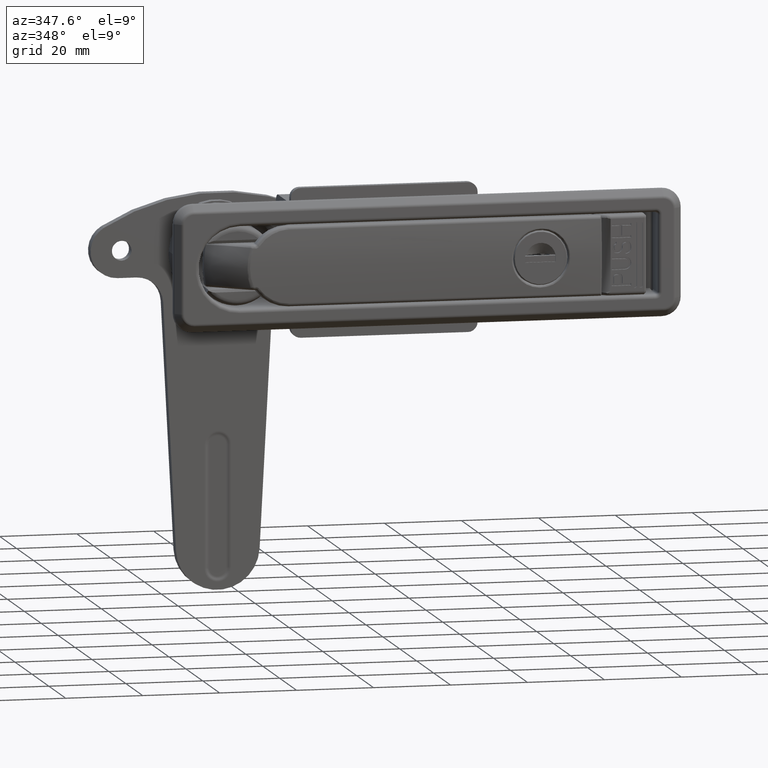
[diagram: clean part render]
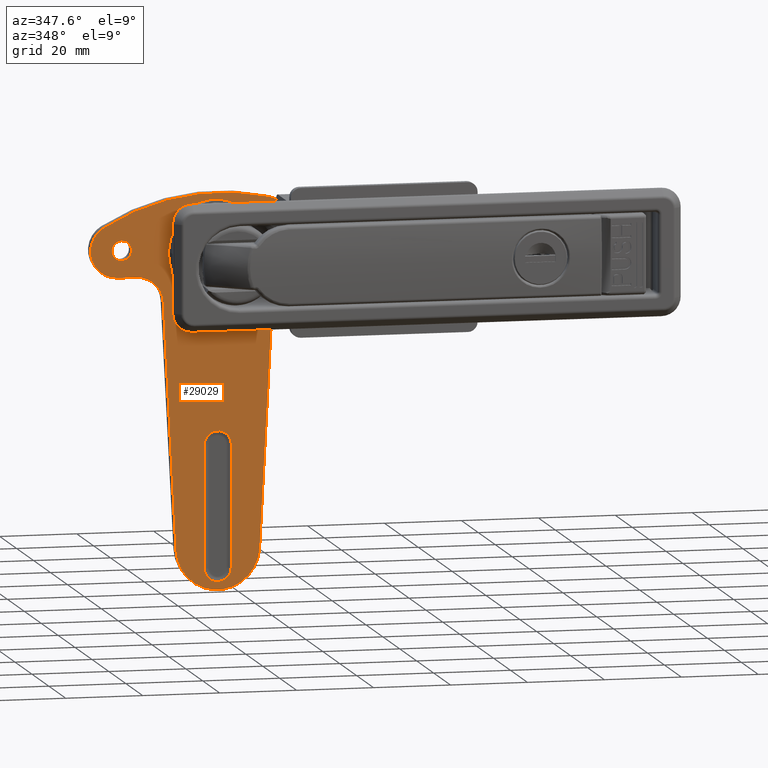
[diagram: same view with one face highlighted and labeled with its STEP entity id]
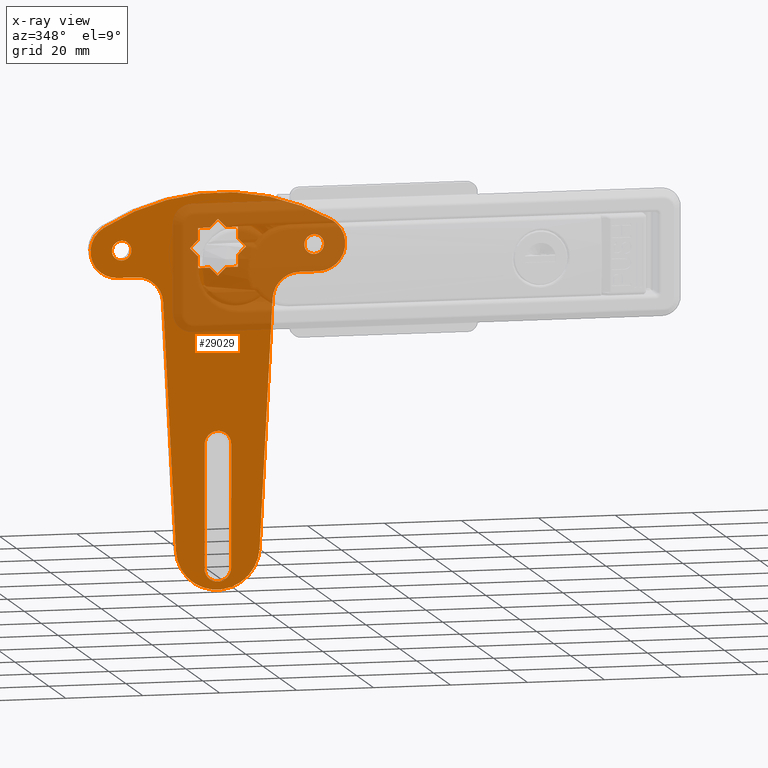
[diagram: x-ray of the same camera — body ghosted, the highlighted face saturated]
A machine part, auxiliary view. The second image highlights one B-rep face of the part: STEP entity #29029.
The next image is the same camera in x-ray: the body ghosted, the highlighted face saturated — about 36% of this face is hidden behind the body in this view.
In plain terms, the highlighted planar face has unit normal (0, -1, -0).
Its self-contained STEP definition (entity closure, byte-faithful):
#606=FACE_BOUND('',#6515,.T.);
#607=FACE_BOUND('',#6516,.T.);
#608=FACE_BOUND('',#6517,.T.);
#609=FACE_BOUND('',#6518,.T.);
#2343=CIRCLE('',#31959,3.47177978870815);
#2344=CIRCLE('',#31962,3.47177978870815);
#2346=CIRCLE('',#31966,10.88);
#2347=CIRCLE('',#31967,7.);
#2348=CIRCLE('',#31968,7.);
#2349=CIRCLE('',#31969,57.9781727801223);
#2350=CIRCLE('',#31970,7.);
#2351=CIRCLE('',#31971,7.00000000000001);
#2352=CIRCLE('',#31972,2.55);
#2353=CIRCLE('',#31973,2.55);
#4631=FACE_OUTER_BOUND('',#6514,.T.);
#6514=EDGE_LOOP('',(#26246,#26247,#26248,#26249,#26250,#26251,#26252,#26253,
#26254,#26255));
#6515=EDGE_LOOP('',(#26256));
#6516=EDGE_LOOP('',(#26257));
#6517=EDGE_LOOP('',(#26258,#26259,#26260,#26261,#26262,#26263,#26264,#26265,
#26266,#26267,#26268,#26269,#26270,#26271,#26272,#26273));
#6518=EDGE_LOOP('',(#26274,#26275,#26276,#26277));
#9284=LINE('',#101796,#11329);
#9285=LINE('',#101808,#11330);
#9286=LINE('',#101814,#11331);
#9287=LINE('',#101818,#11332);
#9288=LINE('',#101826,#11333);
#9289=LINE('',#101829,#11334);
#9290=LINE('',#101836,#11335);
#9291=LINE('',#101838,#11336);
#9292=LINE('',#101840,#11337);
#9293=LINE('',#101842,#11338);
#9294=LINE('',#101844,#11339);
#9295=LINE('',#101846,#11340);
#9296=LINE('',#101848,#11341);
#9297=LINE('',#101850,#11342);
#9298=LINE('',#101852,#11343);
#9299=LINE('',#101854,#11344);
#9300=LINE('',#101856,#11345);
#9301=LINE('',#101858,#11346);
#9302=LINE('',#101860,#11347);
#9303=LINE('',#101862,#11348);
#9304=LINE('',#101864,#11349);
#9305=LINE('',#101865,#11350);
#11329=VECTOR('',#39673,31.8);
#11330=VECTOR('',#39692,31.8);
#11331=VECTOR('',#39697,64.1395353896487);
#11332=VECTOR('',#39700,4.9);
#11333=VECTOR('',#39707,4.9);
#11334=VECTOR('',#39710,64.1395353896487);
#11335=VECTOR('',#39715,3.01680015377856);
#11336=VECTOR('',#39716,3.01680015377856);
#11337=VECTOR('',#39717,3.01680015377857);
#11338=VECTOR('',#39718,3.01680015377857);
#11339=VECTOR('',#39719,3.01680015377856);
#11340=VECTOR('',#39720,3.01680015377856);
#11341=VECTOR('',#39721,3.01680015377856);
#11342=VECTOR('',#39722,3.01680015377856);
#11343=VECTOR('',#39723,3.01680015377856);
#11344=VECTOR('',#39724,3.01680015377856);
#11345=VECTOR('',#39725,3.01680015377856);
#11346=VECTOR('',#39726,3.01680015377856);
#11347=VECTOR('',#39727,3.01680015377856);
#11348=VECTOR('',#39728,3.01680015377856);
#11349=VECTOR('',#39729,3.01680015377856);
#11350=VECTOR('',#39730,3.01680015377856);
#13922=VERTEX_POINT('',#101793);
#13923=VERTEX_POINT('',#101795);
#13924=VERTEX_POINT('',#101799);
#13925=VERTEX_POINT('',#101804);
#13926=VERTEX_POINT('',#101810);
#13927=VERTEX_POINT('',#101811);
#13928=VERTEX_POINT('',#101813);
#13929=VERTEX_POINT('',#101815);
#13930=VERTEX_POINT('',#101817);
#13931=VERTEX_POINT('',#101819);
#13932=VERTEX_POINT('',#101821);
#13933=VERTEX_POINT('',#101823);
#13934=VERTEX_POINT('',#101825);
#13935=VERTEX_POINT('',#101827);
#13936=VERTEX_POINT('',#101830);
#13937=VERTEX_POINT('',#101832);
#13938=VERTEX_POINT('',#101834);
#13939=VERTEX_POINT('',#101835);
#13940=VERTEX_POINT('',#101837);
#13941=VERTEX_POINT('',#101839);
#13942=VERTEX_POINT('',#101841);
#13943=VERTEX_POINT('',#101843);
#13944=VERTEX_POINT('',#101845);
#13945=VERTEX_POINT('',#101847);
#13946=VERTEX_POINT('',#101849);
#13947=VERTEX_POINT('',#101851);
#13948=VERTEX_POINT('',#101853);
#13949=VERTEX_POINT('',#101855);
#13950=VERTEX_POINT('',#101857);
#13951=VERTEX_POINT('',#101859);
#13952=VERTEX_POINT('',#101861);
#13953=VERTEX_POINT('',#101863);
#18057=EDGE_CURVE('',#13922,#13923,#9284,.T.);
#18060=EDGE_CURVE('',#13924,#13922,#2343,.T.);
#18061=EDGE_CURVE('',#13923,#13925,#2344,.T.);
#18063=EDGE_CURVE('',#13925,#13924,#9285,.T.);
#18064=EDGE_CURVE('',#13926,#13927,#2346,.T.);
#18065=EDGE_CURVE('',#13927,#13928,#9286,.T.);
#18066=EDGE_CURVE('',#13928,#13929,#2347,.T.);
#18067=EDGE_CURVE('',#13929,#13930,#9287,.T.);
#18068=EDGE_CURVE('',#13930,#13931,#2348,.T.);
#18069=EDGE_CURVE('',#13931,#13932,#2349,.T.);
#18070=EDGE_CURVE('',#13932,#13933,#2350,.T.);
#18071=EDGE_CURVE('',#13933,#13934,#9288,.T.);
#18072=EDGE_CURVE('',#13934,#13935,#2351,.T.);
#18073=EDGE_CURVE('',#13935,#13926,#9289,.T.);
#18074=EDGE_CURVE('',#13936,#13936,#2352,.T.);
#18075=EDGE_CURVE('',#13937,#13937,#2353,.T.);
#18076=EDGE_CURVE('',#13938,#13939,#9290,.T.);
#18077=EDGE_CURVE('',#13939,#13940,#9291,.T.);
#18078=EDGE_CURVE('',#13940,#13941,#9292,.T.);
#18079=EDGE_CURVE('',#13941,#13942,#9293,.T.);
#18080=EDGE_CURVE('',#13942,#13943,#9294,.T.);
#18081=EDGE_CURVE('',#13943,#13944,#9295,.T.);
#18082=EDGE_CURVE('',#13944,#13945,#9296,.T.);
#18083=EDGE_CURVE('',#13945,#13946,#9297,.T.);
#18084=EDGE_CURVE('',#13946,#13947,#9298,.T.);
#18085=EDGE_CURVE('',#13947,#13948,#9299,.T.);
#18086=EDGE_CURVE('',#13948,#13949,#9300,.T.);
#18087=EDGE_CURVE('',#13949,#13950,#9301,.T.);
#18088=EDGE_CURVE('',#13950,#13951,#9302,.T.);
#18089=EDGE_CURVE('',#13951,#13952,#9303,.T.);
#18090=EDGE_CURVE('',#13952,#13953,#9304,.T.);
#18091=EDGE_CURVE('',#13953,#13938,#9305,.T.);
#26246=ORIENTED_EDGE('',*,*,#18064,.T.);
#26247=ORIENTED_EDGE('',*,*,#18065,.T.);
#26248=ORIENTED_EDGE('',*,*,#18066,.T.);
#26249=ORIENTED_EDGE('',*,*,#18067,.T.);
#26250=ORIENTED_EDGE('',*,*,#18068,.T.);
#26251=ORIENTED_EDGE('',*,*,#18069,.T.);
#26252=ORIENTED_EDGE('',*,*,#18070,.T.);
#26253=ORIENTED_EDGE('',*,*,#18071,.T.);
#26254=ORIENTED_EDGE('',*,*,#18072,.T.);
#26255=ORIENTED_EDGE('',*,*,#18073,.T.);
#26256=ORIENTED_EDGE('',*,*,#18074,.T.);
#26257=ORIENTED_EDGE('',*,*,#18075,.T.);
#26258=ORIENTED_EDGE('',*,*,#18076,.T.);
#26259=ORIENTED_EDGE('',*,*,#18077,.T.);
#26260=ORIENTED_EDGE('',*,*,#18078,.T.);
#26261=ORIENTED_EDGE('',*,*,#18079,.T.);
#26262=ORIENTED_EDGE('',*,*,#18080,.T.);
#26263=ORIENTED_EDGE('',*,*,#18081,.T.);
#26264=ORIENTED_EDGE('',*,*,#18082,.T.);
#26265=ORIENTED_EDGE('',*,*,#18083,.T.);
#26266=ORIENTED_EDGE('',*,*,#18084,.T.);
#26267=ORIENTED_EDGE('',*,*,#18085,.T.);
#26268=ORIENTED_EDGE('',*,*,#18086,.T.);
#26269=ORIENTED_EDGE('',*,*,#18087,.T.);
#26270=ORIENTED_EDGE('',*,*,#18088,.T.);
#26271=ORIENTED_EDGE('',*,*,#18089,.T.);
#26272=ORIENTED_EDGE('',*,*,#18090,.T.);
#26273=ORIENTED_EDGE('',*,*,#18091,.T.);
#26274=ORIENTED_EDGE('',*,*,#18061,.F.);
#26275=ORIENTED_EDGE('',*,*,#18057,.F.);
#26276=ORIENTED_EDGE('',*,*,#18060,.F.);
#26277=ORIENTED_EDGE('',*,*,#18063,.F.);
#27332=PLANE('',#31965);
#29029=ADVANCED_FACE('',(#4631,#606,#607,#608,#609),#27332,.T.);
#31959=AXIS2_PLACEMENT_3D('',#101801,#39680,#39681);
#31962=AXIS2_PLACEMENT_3D('',#101805,#39686,#39687);
#31965=AXIS2_PLACEMENT_3D('',#101809,#39693,#39694);
#31966=AXIS2_PLACEMENT_3D('',#101812,#39695,#39696);
#31967=AXIS2_PLACEMENT_3D('',#101816,#39698,#39699);
#31968=AXIS2_PLACEMENT_3D('',#101820,#39701,#39702);
#31969=AXIS2_PLACEMENT_3D('',#101822,#39703,#39704);
#31970=AXIS2_PLACEMENT_3D('',#101824,#39705,#39706);
#31971=AXIS2_PLACEMENT_3D('',#101828,#39708,#39709);
#31972=AXIS2_PLACEMENT_3D('',#101831,#39711,#39712);
#31973=AXIS2_PLACEMENT_3D('',#101833,#39713,#39714);
#39673=DIRECTION('',(-1.,0.,0.));
#39680=DIRECTION('center_axis',(0.,0.,1.));
#39681=DIRECTION('ref_axis',(-2.5582798269317E-15,1.,0.));
#39686=DIRECTION('center_axis',(0.,0.,1.));
#39687=DIRECTION('ref_axis',(1.,0.,0.));
#39692=DIRECTION('',(1.,0.,0.));
#39693=DIRECTION('center_axis',(0.,0.,1.));
#39694=DIRECTION('ref_axis',(1.,0.,0.));
#39695=DIRECTION('center_axis',(0.,0.,1.));
#39696=DIRECTION('ref_axis',(1.,0.,0.));
#39697=DIRECTION('',(0.998639714672348,-0.0521413490344388,0.));
#39698=DIRECTION('center_axis',(0.,0.,-1.));
#39699=DIRECTION('ref_axis',(-1.,7.93016446160827E-17,0.));
#39700=DIRECTION('',(-8.50745612739583E-17,-1.,0.));
#39701=DIRECTION('center_axis',(0.,0.,1.));
#39702=DIRECTION('ref_axis',(-1.,7.22069344415986E-17,0.));
#39703=DIRECTION('center_axis',(0.,0.,1.));
#39704=DIRECTION('ref_axis',(0.858995087738313,-0.511983827128796,0.));
#39705=DIRECTION('center_axis',(0.,0.,1.));
#39706=DIRECTION('ref_axis',(1.,0.,0.));
#39707=DIRECTION('',(-8.50745612739583E-17,-1.,0.));
#39708=DIRECTION('center_axis',(0.,0.,-1.));
#39709=DIRECTION('ref_axis',(-0.0521413490344386,0.998639714672348,0.));
#39710=DIRECTION('',(-0.998639714672348,-0.0521413490344387,0.));
#39711=DIRECTION('center_axis',(0.,0.,-1.));
#39712=DIRECTION('ref_axis',(1.,0.,0.));
#39713=DIRECTION('center_axis',(0.,0.,-1.));
#39714=DIRECTION('ref_axis',(1.,0.,0.));
#39715=DIRECTION('',(1.07788643167491E-16,1.,0.));
#39716=DIRECTION('',(1.,4.31154572669964E-16,0.));
#39717=DIRECTION('',(0.707106781186547,0.707106781186548,0.));
#39718=DIRECTION('',(0.707106781186547,-0.707106781186548,0.));
#39719=DIRECTION('',(1.,4.31154572669964E-16,0.));
#39720=DIRECTION('',(1.07788643167491E-16,-1.,0.));
#39721=DIRECTION('',(0.707106781186547,-0.707106781186548,0.));
#39722=DIRECTION('',(-0.707106781186547,-0.707106781186547,0.));
#39723=DIRECTION('',(1.07788643167491E-16,-1.,0.));
#39724=DIRECTION('',(-1.,0.,0.));
#39725=DIRECTION('',(-0.707106781186547,-0.707106781186547,0.));
#39726=DIRECTION('',(-0.707106781186547,0.707106781186547,0.));
#39727=DIRECTION('',(-1.,0.,0.));
#39728=DIRECTION('',(1.07788643167491E-16,1.,0.));
#39729=DIRECTION('',(-0.707106781186547,0.707106781186547,0.));
#39730=DIRECTION('',(0.707106781186547,0.707106781186548,0.));
#101793=CARTESIAN_POINT('',(-50.6,29.5717797887082,3.));
#101795=CARTESIAN_POINT('',(-82.4,29.5717797887082,3.));
#101796=CARTESIAN_POINT('',(-63.8599961758363,29.5717797887082,3.));
#101799=CARTESIAN_POINT('',(-50.6,22.6282202112919,3.));
#101801=CARTESIAN_POINT('Origin',(-50.6,26.1,3.));
#101804=CARTESIAN_POINT('',(-82.4,22.6282202112919,3.));
#101805=CARTESIAN_POINT('Origin',(-82.4,26.1,3.));
#101808=CARTESIAN_POINT('',(-79.7599961758363,22.6282202112919,3.));
#101809=CARTESIAN_POINT('Origin',(-77.1199923516726,26.1,3.));
#101810=CARTESIAN_POINT('',(-77.6872978774947,36.9652000956352,3.));
#101811=CARTESIAN_POINT('',(-77.6872978774947,15.2347999043649,3.));
#101812=CARTESIAN_POINT('Origin',(-77.12,26.1,3.));
#101813=CARTESIAN_POINT('',(-13.6350105567589,11.8904780027064,3.));
#101814=CARTESIAN_POINT('',(-77.6872978774947,15.2347999043649,3.));
#101815=CARTESIAN_POINT('',(-7.,4.9,3.));
#101816=CARTESIAN_POINT('Origin',(-14.,4.9,3.));
#101817=CARTESIAN_POINT('',(-7.,5.0544854109119E-16,3.));
#101818=CARTESIAN_POINT('',(-7.,52.2,3.));
#101819=CARTESIAN_POINT('',(6.01296561416819,-3.58388678990157,3.));
#101820=CARTESIAN_POINT('Origin',(0.,0.,3.));
#101821=CARTESIAN_POINT('',(6.01296561416819,55.7838867899016,3.));
#101822=CARTESIAN_POINT('Origin',(-43.79,26.1,3.));
#101823=CARTESIAN_POINT('',(-7.,52.2,3.));
#101824=CARTESIAN_POINT('Origin',(0.,52.2,3.));
#101825=CARTESIAN_POINT('',(-7.,47.3,3.));
#101826=CARTESIAN_POINT('',(-7.,52.2,3.));
#101827=CARTESIAN_POINT('',(-13.6350105567589,40.3095219972936,3.));
#101828=CARTESIAN_POINT('Origin',(-14.,47.3,3.));
#101829=CARTESIAN_POINT('',(-13.6350105567589,40.3095219972936,3.));
#101830=CARTESIAN_POINT('',(2.55,1.1,3.));
#101831=CARTESIAN_POINT('Origin',(0.,1.1,3.));
#101832=CARTESIAN_POINT('',(2.55,51.1,3.));
#101833=CARTESIAN_POINT('Origin',(0.,51.1,3.));
#101834=CARTESIAN_POINT('',(-5.15,28.2331998462214,3.));
#101835=CARTESIAN_POINT('',(-5.15,31.25,3.));
#101836=CARTESIAN_POINT('',(-5.15000000000001,23.525,3.));
#101837=CARTESIAN_POINT('',(-2.13319984622145,31.25,3.));
#101838=CARTESIAN_POINT('',(-41.1349961758363,31.25,3.));
#101839=CARTESIAN_POINT('',(0.,33.3831998462214,3.));
#101840=CARTESIAN_POINT('',(-24.7423979725842,8.6408018736372,3.));
#101841=CARTESIAN_POINT('',(2.13319984622144,31.25,3.));
#101842=CARTESIAN_POINT('',(-17.4591981263628,50.8423979725843,3.));
#101843=CARTESIAN_POINT('',(5.15,31.25,3.));
#101844=CARTESIAN_POINT('',(-41.1349961758363,31.25,3.));
#101845=CARTESIAN_POINT('',(5.15,28.2331998462214,3.));
#101846=CARTESIAN_POINT('',(5.15,28.675,3.));
#101847=CARTESIAN_POINT('',(7.28319984622144,26.1,3.));
#101848=CARTESIAN_POINT('',(-17.4591981263628,50.8423979725843,3.));
#101849=CARTESIAN_POINT('',(5.15,23.9668001537786,3.));
#101850=CARTESIAN_POINT('',(-13.8175982032521,4.99920195052648,3.));
#101851=CARTESIAN_POINT('',(5.15,20.95,3.));
#101852=CARTESIAN_POINT('',(5.15,28.675,3.));
#101853=CARTESIAN_POINT('',(2.13319984622144,20.95,3.));
#101854=CARTESIAN_POINT('',(-35.9849961758363,20.95,3.));
#101855=CARTESIAN_POINT('',(0.,18.8168001537786,3.));
#101856=CARTESIAN_POINT('',(-13.8175982032521,4.99920195052648,3.));
#101857=CARTESIAN_POINT('',(-2.13319984622144,20.95,3.));
#101858=CARTESIAN_POINT('',(-21.1007980494735,39.9175982032521,3.));
#101859=CARTESIAN_POINT('',(-5.15,20.95,3.));
#101860=CARTESIAN_POINT('',(-35.9849961758363,20.95,3.));
#101861=CARTESIAN_POINT('',(-5.15,23.9668001537786,3.));
#101862=CARTESIAN_POINT('',(-5.15000000000001,23.525,3.));
#101863=CARTESIAN_POINT('',(-7.28319984622144,26.1,3.));
#101864=CARTESIAN_POINT('',(-21.1007980494735,39.9175982032521,3.));
#101865=CARTESIAN_POINT('',(-24.7423979725842,8.6408018736372,3.));